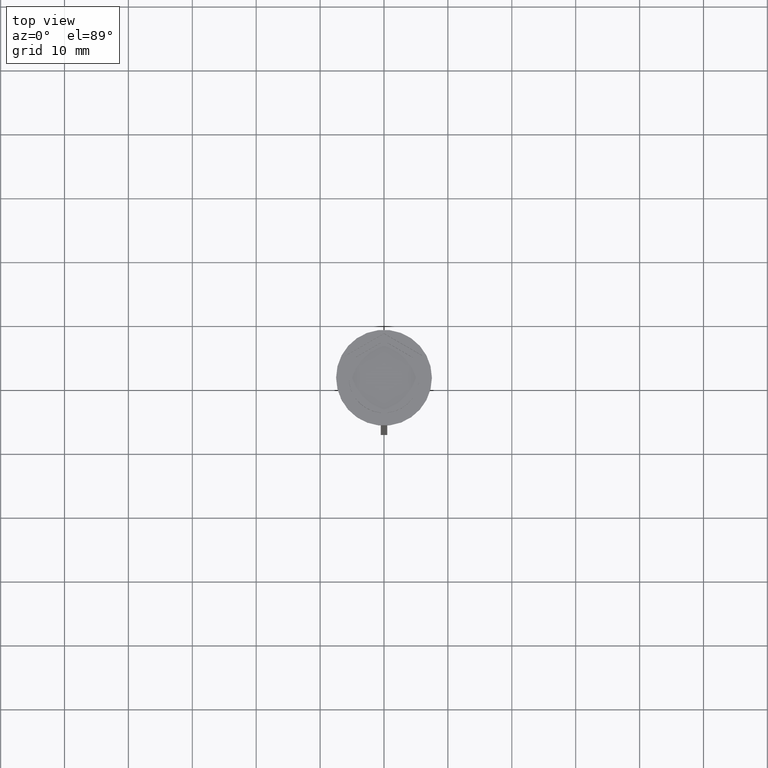
[diagram: clean part render]
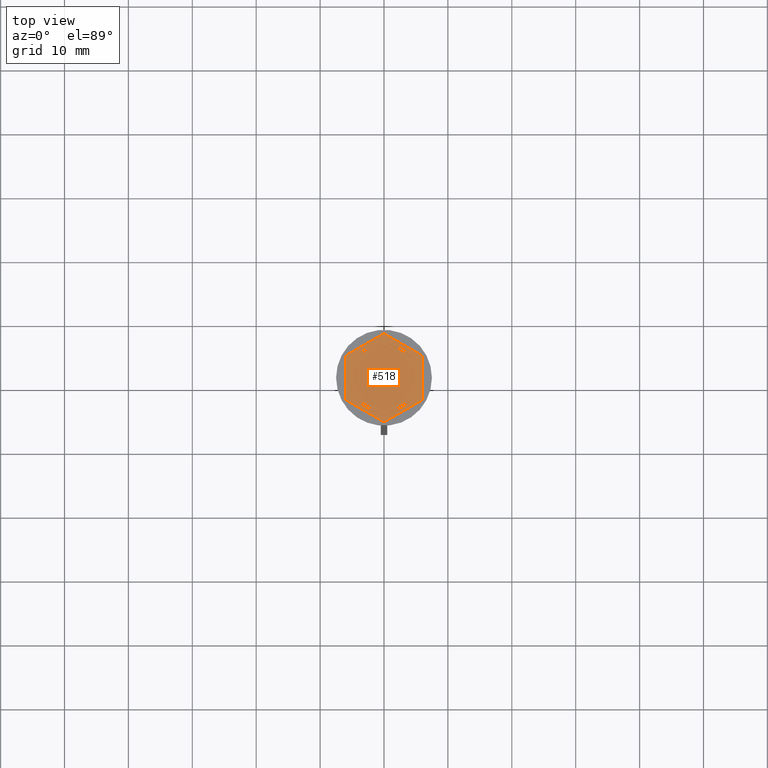
[diagram: same view with one face highlighted and labeled with its STEP entity id]
A machine part, top view. The second image highlights one B-rep face of the part: STEP entity #518.
In plain terms, the highlighted planar face has unit normal (0, 0, 1).
Its self-contained STEP definition (entity closure, byte-faithful):
#31 = VECTOR ( 'NONE', #1287, 1000.000000000000227 ) ;
#55 = LINE ( 'NONE', #910, #814 ) ;
#56 = LINE ( 'NONE', #971, #1644 ) ;
#71 = DIRECTION ( 'NONE',  ( -0.8660254037844387076, 0.4999999999999998335, 0.000000000000000000 ) ) ;
#80 = FACE_BOUND ( 'NONE', #1805, .T. ) ;
#90 = LINE ( 'NONE', #1023, #2425 ) ;
#94 = FACE_BOUND ( 'NONE', #1174, .T. ) ;
#122 = LINE ( 'NONE', #2199, #2041 ) ;
#158 = LINE ( 'NONE', #749, #1122 ) ;
#159 = DIRECTION ( 'NONE',  ( 0.000000000000000000, 0.000000000000000000, 1.000000000000000000 ) ) ;
#167 = VERTEX_POINT ( 'NONE', #2163 ) ;
#176 = ORIENTED_EDGE ( 'NONE', *, *, #1881, .F. ) ;
#183 = ORIENTED_EDGE ( 'NONE', *, *, #1231, .F. ) ;
#201 = CARTESIAN_POINT ( 'NONE',  ( 0.5156865167015596274, 5.475770942661155161, -1.000000000000000888 ) ) ;
#209 = CIRCLE ( 'NONE', #338, 5.500000000000001776 ) ;
#216 = VERTEX_POINT ( 'NONE', #773 ) ;
#217 = ORIENTED_EDGE ( 'NONE', *, *, #772, .T. ) ;
#244 = DIRECTION ( 'NONE',  ( 1.000000000000000000, 0.000000000000000000, 0.000000000000000000 ) ) ;
#250 = CIRCLE ( 'NONE', #894, 5.500000000000001776 ) ;
#270 = EDGE_LOOP ( 'NONE', ( #748, #517 ) ) ;
#291 = VERTEX_POINT ( 'NONE', #2314 ) ;
#303 = DIRECTION ( 'NONE',  ( 1.000000000000000000, 0.000000000000000000, 0.000000000000000000 ) ) ;
#306 = CIRCLE ( 'NONE', #2193, 5.500000000000001776 ) ;
#336 = AXIS2_PLACEMENT_3D ( 'NONE', #783, #592, #1557 ) ;
#338 = AXIS2_PLACEMENT_3D ( 'NONE', #1681, #756, #1495 ) ;
#343 = VERTEX_POINT ( 'NONE', #2218 ) ;
#356 = DIRECTION ( 'NONE',  ( 1.000000000000000000, 0.000000000000000000, 0.000000000000000000 ) ) ;
#360 = EDGE_CURVE ( 'NONE', #1937, #216, #1077, .T. ) ;
#364 = CARTESIAN_POINT ( 'NONE',  ( -6.000000000000000000, 3.464101615137752166, -1.000000000000000000 ) ) ;
#365 = DIRECTION ( 'NONE',  ( 1.000000000000000000, 0.000000000000000000, 0.000000000000000000 ) ) ;
#367 = VECTOR ( 'NONE', #718, 1000.000000000000114 ) ;
#431 = ORIENTED_EDGE ( 'NONE', *, *, #1197, .F. ) ;
#436 = VERTEX_POINT ( 'NONE', #1212 ) ;
#476 = CARTESIAN_POINT ( 'NONE',  ( 0.000000000000000000, 6.928203230275506996, -1.000000000000000000 ) ) ;
#494 = DIRECTION ( 'NONE',  ( 0.000000000000000000, 0.000000000000000000, 1.000000000000000000 ) ) ;
#517 = ORIENTED_EDGE ( 'NONE', *, *, #360, .F. ) ;
#518 = ADVANCED_FACE ( 'NONE', ( #1591, #1786, #80, #657, #94, #861, #1419 ), #691, .T. ) ;
#520 = CARTESIAN_POINT ( 'NONE',  ( -5.000000000000000888, 2.291287847477921247, -1.000000000000000888 ) ) ;
#573 = CARTESIAN_POINT ( 'NONE',  ( -4.484313483298445036, 3.184483095183233470, -1.000000000000000888 ) ) ;
#590 = ORIENTED_EDGE ( 'NONE', *, *, #1422, .F. ) ;
#592 = DIRECTION ( 'NONE',  ( 0.000000000000000000, 0.000000000000000000, 1.000000000000000000 ) ) ;
#654 = CARTESIAN_POINT ( 'NONE',  ( -5.500000000000001776, 0.000000000000000000, -1.000000000000000000 ) ) ;
#657 = FACE_BOUND ( 'NONE', #753, .T. ) ;
#661 = AXIS2_PLACEMENT_3D ( 'NONE', #1133, #1144, #2472 ) ;
#671 = DIRECTION ( 'NONE',  ( 0.000000000000000000, 0.000000000000000000, 1.000000000000000000 ) ) ;
#680 = VECTOR ( 'NONE', #895, 1000.000000000000000 ) ;
#691 = PLANE ( 'NONE',  #1790 ) ;
#693 = CIRCLE ( 'NONE', #2096, 5.500000000000001776 ) ;
#712 = CARTESIAN_POINT ( 'NONE',  ( 0.000000000000000000, 0.000000000000000000, -1.000000000000000000 ) ) ;
#718 = DIRECTION ( 'NONE',  ( -0.8660254037844387076, -0.4999999999999997224, 0.000000000000000000 ) ) ;
#734 = DIRECTION ( 'NONE',  ( -0.8660254037844385966, 0.5000000000000001110, 0.000000000000000000 ) ) ;
#745 = DIRECTION ( 'NONE',  ( 0.8660254037844388186, -0.4999999999999997224, 0.000000000000000000 ) ) ;
#746 = EDGE_CURVE ( 'NONE', #1567, #1579, #122, .T. ) ;
#747 = EDGE_LOOP ( 'NONE', ( #1224, #1126 ) ) ;
#748 = ORIENTED_EDGE ( 'NONE', *, *, #2162, .F. ) ;
#749 = CARTESIAN_POINT ( 'NONE',  ( -4.280685092543093048E-16, -6.928203230275507885, -1.000000000000000000 ) ) ;
#753 = EDGE_LOOP ( 'NONE', ( #590, #812 ) ) ;
#756 = DIRECTION ( 'NONE',  ( 0.000000000000000000, 0.000000000000000000, 1.000000000000000000 ) ) ;
#767 = VERTEX_POINT ( 'NONE', #520 ) ;
#772 = EDGE_CURVE ( 'NONE', #436, #1520, #1277, .T. ) ;
#773 = CARTESIAN_POINT ( 'NONE',  ( -0.5156865167015569629, 5.475770942661155161, -1.000000000000000888 ) ) ;
#783 = CARTESIAN_POINT ( 'NONE',  ( 0.000000000000000000, 0.000000000000000000, -1.000000000000000000 ) ) ;
#812 = ORIENTED_EDGE ( 'NONE', *, *, #998, .F. ) ;
#814 = VECTOR ( 'NONE', #734, 1000.000000000000000 ) ;
#861 = FACE_BOUND ( 'NONE', #270, .T. ) ;
#882 = CARTESIAN_POINT ( 'NONE',  ( -4.280685092543093048E-16, -6.928203230275507885, -1.000000000000000000 ) ) ;
#887 = EDGE_LOOP ( 'NONE', ( #1092, #217, #1784, #1550, #1776, #1446 ) ) ;
#894 = AXIS2_PLACEMENT_3D ( 'NONE', #1717, #1399, #244 ) ;
#895 = DIRECTION ( 'NONE',  ( 0.8660254037844385966, 0.5000000000000001110, -0.000000000000000000 ) ) ;
#910 = CARTESIAN_POINT ( 'NONE',  ( -5.000000000000000888, -2.886751345948129099, -1.000000000000000888 ) ) ;
#933 = LINE ( 'NONE', #2467, #1248 ) ;
#960 = LINE ( 'NONE', #2468, #1206 ) ;
#961 = EDGE_CURVE ( 'NONE', #1946, #343, #1349, .T. ) ;
#971 = CARTESIAN_POINT ( 'NONE',  ( 4.999999999999999112, -2.886751345948130432, -1.000000000000000888 ) ) ;
#986 = DIRECTION ( 'NONE',  ( 2.503857664561932376E-16, 1.000000000000000000, 0.000000000000000000 ) ) ;
#998 = EDGE_CURVE ( 'NONE', #167, #1910, #55, .T. ) ;
#1023 = CARTESIAN_POINT ( 'NONE',  ( -6.000000000000000000, 3.464101615137752166, -1.000000000000000000 ) ) ;
#1036 = EDGE_CURVE ( 'NONE', #2138, #2235, #158, .T. ) ;
#1077 = LINE ( 'NONE', #1835, #680 ) ;
#1092 = ORIENTED_EDGE ( 'NONE', *, *, #1163, .T. ) ;
#1103 = CARTESIAN_POINT ( 'NONE',  ( 0.000000000000000000, 0.000000000000000000, -1.000000000000000000 ) ) ;
#1104 = EDGE_CURVE ( 'NONE', #291, #767, #960, .T. ) ;
#1118 = EDGE_CURVE ( 'NONE', #767, #2065, #693, .T. ) ;
#1122 = VECTOR ( 'NONE', #1508, 1000.000000000000227 ) ;
#1126 = ORIENTED_EDGE ( 'NONE', *, *, #746, .F. ) ;
#1127 = DIRECTION ( 'NONE',  ( 0.000000000000000000, 1.000000000000000000, 0.000000000000000000 ) ) ;
#1133 = CARTESIAN_POINT ( 'NONE',  ( 0.000000000000000000, 0.000000000000000000, -1.000000000000000000 ) ) ;
#1137 = CARTESIAN_POINT ( 'NONE',  ( -1.734723475976807094E-15, -5.773502691896258199, -1.000000000000000888 ) ) ;
#1144 = DIRECTION ( 'NONE',  ( 0.000000000000000000, 0.000000000000000000, 1.000000000000000000 ) ) ;
#1163 = EDGE_CURVE ( 'NONE', #1256, #436, #1733, .T. ) ;
#1174 = EDGE_LOOP ( 'NONE', ( #2352, #1465, #176 ) ) ;
#1179 = CARTESIAN_POINT ( 'NONE',  ( 5.999999999999998224, -3.464101615137753942, -1.000000000000000000 ) ) ;
#1186 = EDGE_CURVE ( 'NONE', #2235, #1256, #2126, .T. ) ;
#1197 = EDGE_CURVE ( 'NONE', #2213, #1612, #250, .T. ) ;
#1202 = CARTESIAN_POINT ( 'NONE',  ( 6.000000000000000000, 3.464101615137753942, -1.000000000000000000 ) ) ;
#1206 = VECTOR ( 'NONE', #1127, 1000.000000000000000 ) ;
#1209 = ORIENTED_EDGE ( 'NONE', *, *, #961, .F. ) ;
#1211 = EDGE_CURVE ( 'NONE', #1612, #2213, #56, .T. ) ;
#1212 = CARTESIAN_POINT ( 'NONE',  ( 0.000000000000000000, 6.928203230275506996, -1.000000000000000000 ) ) ;
#1224 = ORIENTED_EDGE ( 'NONE', *, *, #2378, .F. ) ;
#1228 = EDGE_LOOP ( 'NONE', ( #431, #1434 ) ) ;
#1231 = EDGE_CURVE ( 'NONE', #343, #1946, #1491, .T. ) ;
#1248 = VECTOR ( 'NONE', #745, 1000.000000000000114 ) ;
#1256 = VERTEX_POINT ( 'NONE', #1202 ) ;
#1263 = VERTEX_POINT ( 'NONE', #2371 ) ;
#1277 = LINE ( 'NONE', #476, #31 ) ;
#1287 = DIRECTION ( 'NONE',  ( -0.8660254037844385966, -0.4999999999999998890, 0.000000000000000000 ) ) ;
#1329 = DIRECTION ( 'NONE',  ( 0.000000000000000000, 0.000000000000000000, 1.000000000000000000 ) ) ;
#1349 = LINE ( 'NONE', #1137, #367 ) ;
#1388 = DIRECTION ( 'NONE',  ( -3.004629197474317076E-16, -1.000000000000000000, 0.000000000000000000 ) ) ;
#1399 = DIRECTION ( 'NONE',  ( 0.000000000000000000, 0.000000000000000000, 1.000000000000000000 ) ) ;
#1419 = FACE_OUTER_BOUND ( 'NONE', #887, .T. ) ;
#1422 = EDGE_CURVE ( 'NONE', #1910, #167, #209, .T. ) ;
#1432 = CARTESIAN_POINT ( 'NONE',  ( 0.000000000000000000, 0.000000000000000000, -1.000000000000000000 ) ) ;
#1434 = ORIENTED_EDGE ( 'NONE', *, *, #1211, .F. ) ;
#1446 = ORIENTED_EDGE ( 'NONE', *, *, #1186, .T. ) ;
#1465 = ORIENTED_EDGE ( 'NONE', *, *, #1104, .F. ) ;
#1491 = CIRCLE ( 'NONE', #336, 5.500000000000001776 ) ;
#1495 = DIRECTION ( 'NONE',  ( 1.000000000000000000, 0.000000000000000000, 0.000000000000000000 ) ) ;
#1508 = DIRECTION ( 'NONE',  ( 0.8660254037844385966, 0.5000000000000000000, 0.000000000000000000 ) ) ;
#1520 = VERTEX_POINT ( 'NONE', #364 ) ;
#1525 = EDGE_CURVE ( 'NONE', #1263, #2138, #933, .T. ) ;
#1527 = CARTESIAN_POINT ( 'NONE',  ( 4.484313483298445036, -3.184483095183233026, -1.000000000000000888 ) ) ;
#1541 = CARTESIAN_POINT ( 'NONE',  ( 4.484313483298442371, 3.184483095183238355, -1.000000000000000888 ) ) ;
#1550 = ORIENTED_EDGE ( 'NONE', *, *, #1525, .T. ) ;
#1557 = DIRECTION ( 'NONE',  ( 1.000000000000000000, 0.000000000000000000, 0.000000000000000000 ) ) ;
#1567 = VERTEX_POINT ( 'NONE', #201 ) ;
#1579 = VERTEX_POINT ( 'NONE', #1541 ) ;
#1580 = CARTESIAN_POINT ( 'NONE',  ( 5.000000000000000888, 2.291287847477922135, -1.000000000000000888 ) ) ;
#1591 = FACE_BOUND ( 'NONE', #747, .T. ) ;
#1612 = VERTEX_POINT ( 'NONE', #1580 ) ;
#1637 = DIRECTION ( 'NONE',  ( 0.8660254037844387076, -0.4999999999999998335, 0.000000000000000000 ) ) ;
#1644 = VECTOR ( 'NONE', #1388, 1000.000000000000000 ) ;
#1681 = CARTESIAN_POINT ( 'NONE',  ( 0.000000000000000000, 0.000000000000000000, -1.000000000000000000 ) ) ;
#1717 = CARTESIAN_POINT ( 'NONE',  ( 0.000000000000000000, 0.000000000000000000, -1.000000000000000000 ) ) ;
#1733 = LINE ( 'NONE', #2359, #2185 ) ;
#1776 = ORIENTED_EDGE ( 'NONE', *, *, #1036, .T. ) ;
#1784 = ORIENTED_EDGE ( 'NONE', *, *, #2046, .T. ) ;
#1786 = FACE_BOUND ( 'NONE', #1228, .T. ) ;
#1790 = AXIS2_PLACEMENT_3D ( 'NONE', #1432, #671, #1812 ) ;
#1805 = EDGE_LOOP ( 'NONE', ( #183, #1209 ) ) ;
#1812 = DIRECTION ( 'NONE',  ( 1.000000000000000000, 0.000000000000000000, -0.000000000000000000 ) ) ;
#1818 = CARTESIAN_POINT ( 'NONE',  ( 4.999999999999999112, -2.291287847477924355, -1.000000000000000888 ) ) ;
#1835 = CARTESIAN_POINT ( 'NONE',  ( 4.336808689942017736E-16, 5.773502691896259087, -1.000000000000000888 ) ) ;
#1881 = EDGE_CURVE ( 'NONE', #2065, #291, #1927, .T. ) ;
#1910 = VERTEX_POINT ( 'NONE', #2285 ) ;
#1927 = CIRCLE ( 'NONE', #661, 5.500000000000001776 ) ;
#1937 = VERTEX_POINT ( 'NONE', #573 ) ;
#1946 = VERTEX_POINT ( 'NONE', #1527 ) ;
#2006 = CARTESIAN_POINT ( 'NONE',  ( 5.999999999999998224, -3.464101615137753942, -1.000000000000000000 ) ) ;
#2041 = VECTOR ( 'NONE', #1637, 1000.000000000000114 ) ;
#2046 = EDGE_CURVE ( 'NONE', #1520, #1263, #90, .T. ) ;
#2065 = VERTEX_POINT ( 'NONE', #654 ) ;
#2096 = AXIS2_PLACEMENT_3D ( 'NONE', #2262, #1329, #365 ) ;
#2126 = LINE ( 'NONE', #1179, #2456 ) ;
#2138 = VERTEX_POINT ( 'NONE', #882 ) ;
#2147 = DIRECTION ( 'NONE',  ( 0.000000000000000000, -1.000000000000000000, 0.000000000000000000 ) ) ;
#2162 = EDGE_CURVE ( 'NONE', #216, #1937, #306, .T. ) ;
#2163 = CARTESIAN_POINT ( 'NONE',  ( -0.5156865167015569629, -5.475770942661155161, -1.000000000000000888 ) ) ;
#2185 = VECTOR ( 'NONE', #71, 1000.000000000000000 ) ;
#2193 = AXIS2_PLACEMENT_3D ( 'NONE', #712, #494, #303 ) ;
#2199 = CARTESIAN_POINT ( 'NONE',  ( 5.000000000000000888, 2.886751345948130876, -1.000000000000000888 ) ) ;
#2213 = VERTEX_POINT ( 'NONE', #1818 ) ;
#2218 = CARTESIAN_POINT ( 'NONE',  ( 0.5156865167015526330, -5.475770942661155161, -1.000000000000000888 ) ) ;
#2235 = VERTEX_POINT ( 'NONE', #2006 ) ;
#2262 = CARTESIAN_POINT ( 'NONE',  ( 0.000000000000000000, 0.000000000000000000, -1.000000000000000000 ) ) ;
#2285 = CARTESIAN_POINT ( 'NONE',  ( -4.484313483298445036, -3.184483095183233470, -1.000000000000000888 ) ) ;
#2302 = AXIS2_PLACEMENT_3D ( 'NONE', #1103, #159, #356 ) ;
#2314 = CARTESIAN_POINT ( 'NONE',  ( -5.000000000000000888, -2.291287847477921247, -1.000000000000000888 ) ) ;
#2352 = ORIENTED_EDGE ( 'NONE', *, *, #1118, .F. ) ;
#2359 = CARTESIAN_POINT ( 'NONE',  ( 6.000000000000000000, 3.464101615137753942, -1.000000000000000000 ) ) ;
#2371 = CARTESIAN_POINT ( 'NONE',  ( -6.000000000000000000, -3.464101615137755719, -1.000000000000000000 ) ) ;
#2378 = EDGE_CURVE ( 'NONE', #1579, #1567, #2466, .T. ) ;
#2425 = VECTOR ( 'NONE', #2147, 1000.000000000000000 ) ;
#2456 = VECTOR ( 'NONE', #986, 1000.000000000000000 ) ;
#2466 = CIRCLE ( 'NONE', #2302, 5.500000000000001776 ) ;
#2467 = CARTESIAN_POINT ( 'NONE',  ( -6.000000000000000000, -3.464101615137755719, -1.000000000000000000 ) ) ;
#2468 = CARTESIAN_POINT ( 'NONE',  ( -5.000000000000000888, 2.886751345948129099, -1.000000000000000888 ) ) ;
#2472 = DIRECTION ( 'NONE',  ( 1.000000000000000000, 0.000000000000000000, 0.000000000000000000 ) ) ;